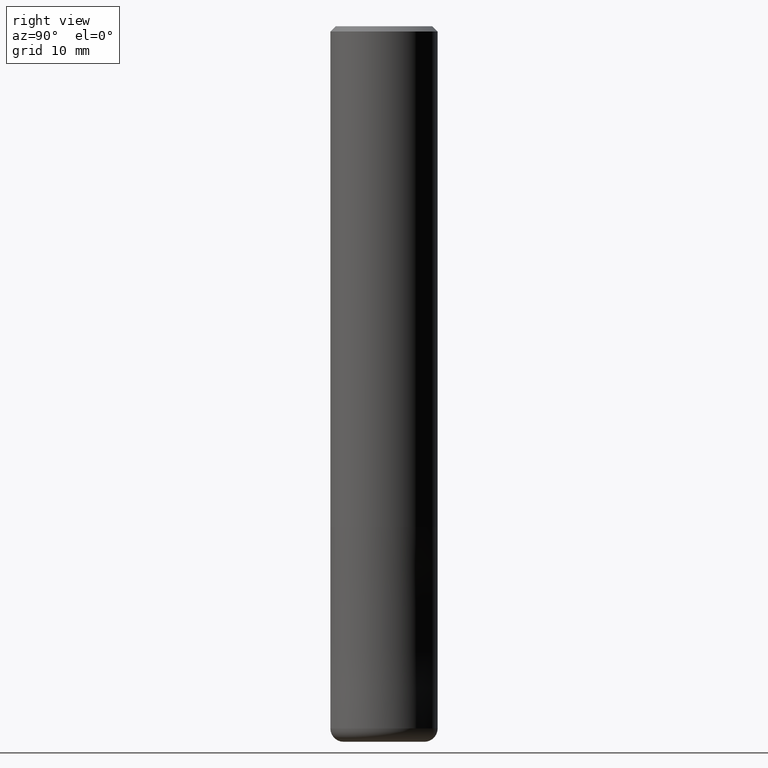
[diagram: clean part render]
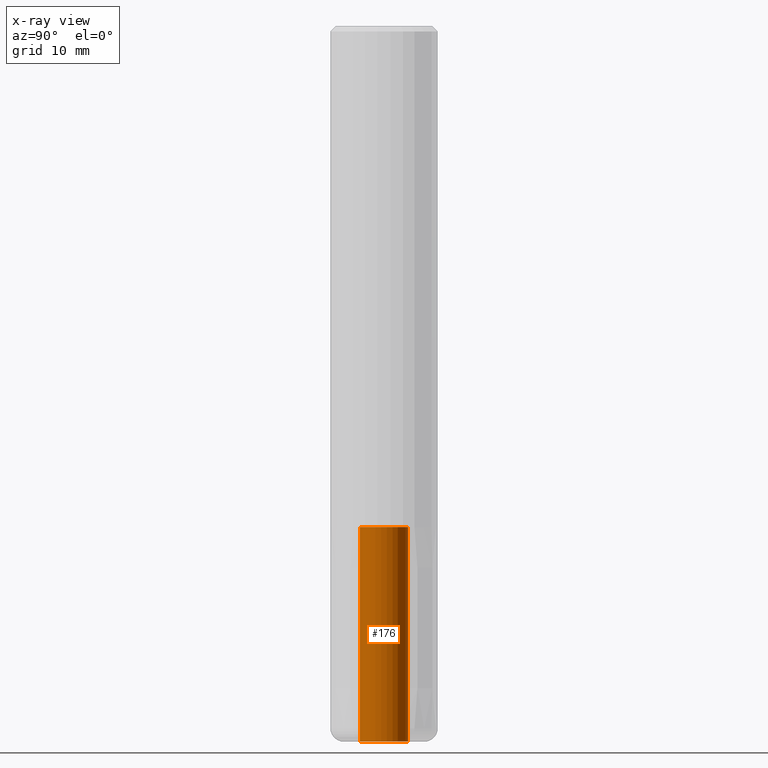
[diagram: x-ray — body ghosted, one internal face saturated and labeled with its STEP entity id]
A machine part, right view, then the same camera in x-ray: the body is ghosted and one INTERNAL B-rep face — a face not visible from any outside direction — is saturated and labeled: STEP entity #176.
In plain terms, the highlighted cylindrical surface (edge-blend (fillet) strip) has radius 2.7 mm, axis along (-0, -0, 1).
Its self-contained STEP definition (entity closure, byte-faithful):
#116=VERTEX_POINT('',#278);
#120=EDGE_CURVE('',#236,#140,#282,.T.);
#132=VERTEX_POINT('',#295);
#140=VERTEX_POINT('',#303);
#154=EDGE_CURVE('',#116,#132,#318,.T.);
#168=EDGE_CURVE('',#116,#236,#334,.T.);
#176=ADVANCED_FACE('',(#342),#343,.F.);
#236=VERTEX_POINT('',#416);
#240=EDGE_CURVE('',#140,#132,#420,.T.);
#278=CARTESIAN_POINT('',(0.0,2.7,-56.0));
#282=CIRCLE('',#464,2.7);
#295=CARTESIAN_POINT('',(3.30643715532042E-016,-2.7,-56.0));
#303=CARTESIAN_POINT('',(3.30643715532042E-016,-2.7,-80.0));
#318=CIRCLE('',#509,2.7);
#334=LINE('',#531,#532);
#342=FACE_OUTER_BOUND('',#542,.T.);
#343=CYLINDRICAL_SURFACE('',#543,2.7);
#416=CARTESIAN_POINT('',(0.0,2.7,-80.0));
#420=LINE('',#632,#633);
#464=AXIS2_PLACEMENT_3D('',#662,#663,#664);
#509=AXIS2_PLACEMENT_3D('',#704,#705,#706);
#531=CARTESIAN_POINT('',(-3.30643715532042E-016,2.7,-68.0));
#532=VECTOR('',#728,1.0);
#542=EDGE_LOOP('',(#731,#732,#733,#734));
#543=AXIS2_PLACEMENT_3D('',#735,#736,#737);
#632=CARTESIAN_POINT('',(3.30643715532042E-016,-2.7,-68.0));
#633=VECTOR('',#841,1.0);
#662=CARTESIAN_POINT('',(0.0,0.0,-80.0));
#663=DIRECTION('',(0.0,0.0,-1.0));
#664=DIRECTION('',(0.0,1.0,0.0));
#704=CARTESIAN_POINT('',(0.0,0.0,-56.0));
#705=DIRECTION('',(0.0,0.0,-1.0));
#706=DIRECTION('',(0.0,1.0,0.0));
#728=DIRECTION('',(0.0,-0.0,-1.0));
#731=ORIENTED_EDGE('',*,*,#168,.T.);
#732=ORIENTED_EDGE('',*,*,#120,.T.);
#733=ORIENTED_EDGE('',*,*,#240,.T.);
#734=ORIENTED_EDGE('',*,*,#154,.F.);
#735=CARTESIAN_POINT('',(0.0,0.0,-68.0));
#736=DIRECTION('',(-0.0,-0.0,1.0));
#737=DIRECTION('',(0.0,1.0,0.0));
#841=DIRECTION('',(0.0,-0.0,1.0));